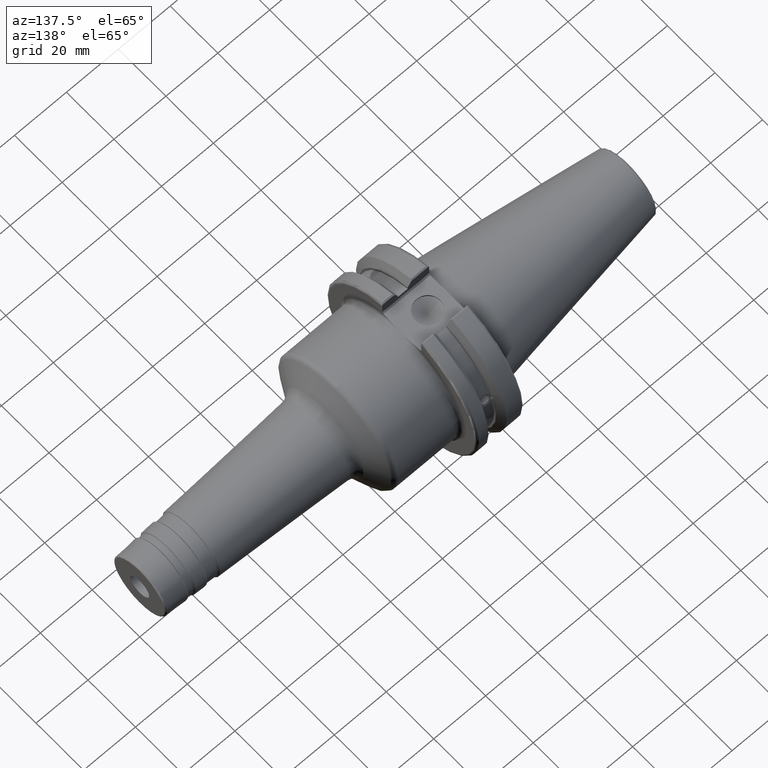
[diagram: clean part render]
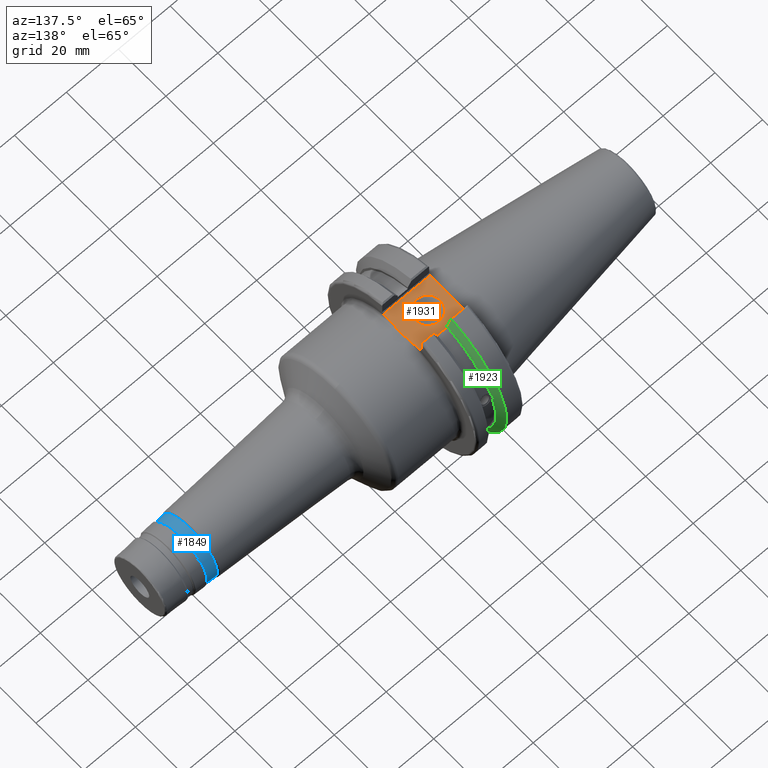
[diagram: same view with three faces highlighted in distinct colors, each labeled with its STEP entity id]
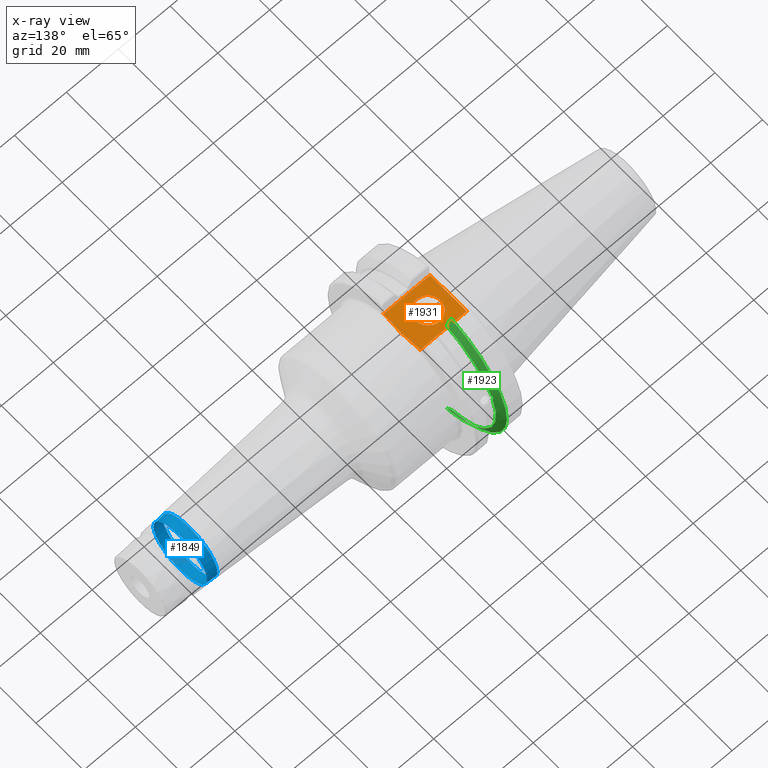
[diagram: x-ray of the same camera — body ghosted, the three highlighted faces saturated]
A machine part, auxiliary view with three faces highlighted in distinct colors.
The next image is the same camera in x-ray (body ghosted, the three faces saturated) — at least one of them is partly hidden behind the body in this view.
Their STEP definitions:

[orange] entity #1931 — the highlighted planar face has unit normal (0, 0, 1).
#83=PLANE('',#2202);
#116=FACE_BOUND('',#407,.T.);
#123=B_SPLINE_CURVE_WITH_KNOTS('',3,(#3075,#3076,#3077,#3078,#3079,#3080,
#3081,#3082,#3083,#3084),.UNSPECIFIED.,.F.,.F.,(4,2,2,2,4),(1.28229186042809,
1.47392183654147,1.862003561099,2.25008528565653,2.44171526176991),
 .UNSPECIFIED.);
#286=FACE_OUTER_BOUND('',#406,.T.);
#406=EDGE_LOOP('',(#1785,#1786,#1787,#1788,#1789,#1790));
#407=EDGE_LOOP('',(#1791));
#431=LINE('',#3111,#529);
#438=LINE('',#3128,#536);
#472=LINE('',#3504,#570);
#497=LINE('',#3725,#595);
#499=LINE('',#3728,#597);
#529=VECTOR('',#2425,10.);
#536=VECTOR('',#2438,10.);
#570=VECTOR('',#2642,10.);
#595=VECTOR('',#2725,10.);
#597=VECTOR('',#2729,10.);
#725=CIRCLE('',#2187,4.7625);
#794=VERTEX_POINT('',#3073);
#795=VERTEX_POINT('',#3074);
#798=VERTEX_POINT('',#3110);
#805=VERTEX_POINT('',#3126);
#881=VERTEX_POINT('',#3501);
#882=VERTEX_POINT('',#3503);
#924=VERTEX_POINT('',#3758);
#1015=EDGE_CURVE('',#794,#795,#123,.F.);
#1020=EDGE_CURVE('',#794,#798,#431,.T.);
#1029=EDGE_CURVE('',#805,#795,#438,.T.);
#1134=EDGE_CURVE('',#881,#882,#472,.T.);
#1193=EDGE_CURVE('',#798,#881,#497,.T.);
#1195=EDGE_CURVE('',#882,#805,#499,.T.);
#1207=EDGE_CURVE('',#924,#924,#725,.T.);
#1785=ORIENTED_EDGE('',*,*,#1193,.F.);
#1786=ORIENTED_EDGE('',*,*,#1020,.F.);
#1787=ORIENTED_EDGE('',*,*,#1015,.T.);
#1788=ORIENTED_EDGE('',*,*,#1029,.F.);
#1789=ORIENTED_EDGE('',*,*,#1195,.F.);
#1790=ORIENTED_EDGE('',*,*,#1134,.F.);
#1791=ORIENTED_EDGE('',*,*,#1207,.T.);
#1931=ADVANCED_FACE('',(#286,#116),#83,.T.);
#2187=AXIS2_PLACEMENT_3D('',#3759,#2761,#2762);
#2202=AXIS2_PLACEMENT_3D('',#3775,#2792,#2793);
#2425=DIRECTION('',(0.,-1.,0.));
#2438=DIRECTION('',(0.,-1.,0.));
#2642=DIRECTION('',(0.,1.,0.));
#2725=DIRECTION('',(-1.,1.16558847729675E-16,0.));
#2729=DIRECTION('',(1.,0.,0.));
#2761=DIRECTION('center_axis',(0.,0.,-1.));
#2762=DIRECTION('ref_axis',(1.,0.,0.));
#2792=DIRECTION('center_axis',(0.,0.,1.));
#2793=DIRECTION('ref_axis',(1.,0.,0.));
#3073=CARTESIAN_POINT('',(19.05,-6.16948133962654,25.));
#3074=CARTESIAN_POINT('',(19.05,6.16948133962654,25.));
#3075=CARTESIAN_POINT('Ctrl Pts',(19.05,6.16948133962654,25.));
#3076=CARTESIAN_POINT('Ctrl Pts',(19.05,5.53071475258195,25.));
#3077=CARTESIAN_POINT('Ctrl Pts',(19.0917093675371,4.76533047486056,25.));
#3078=CARTESIAN_POINT('Ctrl Pts',(19.2334466867335,2.83816328553263,25.));
#3079=CARTESIAN_POINT('Ctrl Pts',(19.3885621722339,1.29360574852511,25.));
#3080=CARTESIAN_POINT('Ctrl Pts',(19.3885621722339,-1.29360574852511,25.));
#3081=CARTESIAN_POINT('Ctrl Pts',(19.2334466867335,-2.83816328553263,25.));
#3082=CARTESIAN_POINT('Ctrl Pts',(19.0917093675371,-4.76533047486056,25.));
#3083=CARTESIAN_POINT('Ctrl Pts',(19.05,-5.53071475258195,25.));
#3084=CARTESIAN_POINT('Ctrl Pts',(19.05,-6.16948133962654,25.));
#3110=CARTESIAN_POINT('',(19.05,-7.69,25.));
#3111=CARTESIAN_POINT('',(19.05,0.,25.));
#3126=CARTESIAN_POINT('',(19.05,7.69,25.));
#3128=CARTESIAN_POINT('',(19.05,0.,25.));
#3501=CARTESIAN_POINT('',(0.999999999999999,-7.68999999999999,25.));
#3503=CARTESIAN_POINT('',(0.999999999999999,7.69,25.));
#3504=CARTESIAN_POINT('',(0.999999999999999,15.875,25.));
#3725=CARTESIAN_POINT('',(7.81,-7.69,25.));
#3728=CARTESIAN_POINT('',(17.335,7.69,25.));
#3758=CARTESIAN_POINT('',(4.1966,-5.83238038093927E-16,25.));
#3759=CARTESIAN_POINT('Origin',(8.9591,0.,25.));
#3775=CARTESIAN_POINT('Origin',(14.62,0.,25.));

[blue] entity #1849 — the highlighted conical surface has half-angle 3 deg.
#204=FACE_OUTER_BOUND('',#314,.T.);
#314=EDGE_LOOP('',(#1330,#1331,#1332,#1333,#1334,#1335));
#427=LINE('',#3032,#525);
#525=VECTOR('',#2363,11.4158035570934);
#652=CIRCLE('',#2022,11.3171748802925);
#656=CIRCLE('',#2026,11.3171748802925);
#657=CIRCLE('',#2028,11.5144322338942);
#658=CIRCLE('',#2029,11.5144322338942);
#778=VERTEX_POINT('',#3021);
#779=VERTEX_POINT('',#3022);
#782=VERTEX_POINT('',#3031);
#783=VERTEX_POINT('',#3033);
#989=EDGE_CURVE('',#778,#779,#652,.T.);
#993=EDGE_CURVE('',#779,#778,#656,.T.);
#994=EDGE_CURVE('',#778,#782,#427,.T.);
#995=EDGE_CURVE('',#783,#782,#657,.T.);
#996=EDGE_CURVE('',#782,#783,#658,.T.);
#1330=ORIENTED_EDGE('',*,*,#989,.F.);
#1331=ORIENTED_EDGE('',*,*,#994,.T.);
#1332=ORIENTED_EDGE('',*,*,#995,.F.);
#1333=ORIENTED_EDGE('',*,*,#996,.F.);
#1334=ORIENTED_EDGE('',*,*,#994,.F.);
#1335=ORIENTED_EDGE('',*,*,#993,.F.);
#1814=CONICAL_SURFACE('',#2027,11.4158035570934,0.0523598775598297);
#1849=ADVANCED_FACE('',(#204),#1814,.T.);
#2022=AXIS2_PLACEMENT_3D('',#3023,#2351,#2352);
#2026=AXIS2_PLACEMENT_3D('',#3029,#2359,#2360);
#2027=AXIS2_PLACEMENT_3D('',#3030,#2361,#2362);
#2028=AXIS2_PLACEMENT_3D('',#3034,#2364,#2365);
#2029=AXIS2_PLACEMENT_3D('',#3035,#2366,#2367);
#2351=DIRECTION('center_axis',(1.,0.,0.));
#2352=DIRECTION('ref_axis',(0.,-1.,3.06161699786838E-17));
#2359=DIRECTION('center_axis',(1.,0.,0.));
#2360=DIRECTION('ref_axis',(0.,-1.,3.06161699786838E-17));
#2361=DIRECTION('center_axis',(-1.,0.,0.));
#2362=DIRECTION('ref_axis',(0.,1.,0.));
#2363=DIRECTION('',(-0.998629534754574,-0.0523359562429436,-6.40930612932369E-18));
#2364=DIRECTION('center_axis',(-1.,0.,0.));
#2365=DIRECTION('ref_axis',(0.,-1.,3.06161699786838E-17));
#2366=DIRECTION('center_axis',(-1.,0.,0.));
#2367=DIRECTION('ref_axis',(0.,-1.,3.06161699786838E-17));
#3021=CARTESIAN_POINT('',(104.394281450576,-11.3171748802925,-1.38595419925411E-15));
#3022=CARTESIAN_POINT('',(104.394281450576,-1.38595419925411E-15,11.3171748802925));
#3023=CARTESIAN_POINT('Origin',(104.394281450576,0.,-1.73244274906763E-15));
#3029=CARTESIAN_POINT('Origin',(104.394281450576,0.,-1.73244274906763E-15));
#3030=CARTESIAN_POINT('Origin',(102.512334187209,0.,0.));
#3031=CARTESIAN_POINT('',(100.630386923842,-11.5144322338942,-1.41011125792377E-15));
#3032=CARTESIAN_POINT('',(102.512334187209,-11.4158035570934,-1.39803272858894E-15));
#3033=CARTESIAN_POINT('',(100.630386923842,-1.41011125792377E-15,11.5144322338942));
#3034=CARTESIAN_POINT('Origin',(100.630386923842,0.,-1.76263907240471E-15));
#3035=CARTESIAN_POINT('Origin',(100.630386923842,0.,-1.76263907240471E-15));

[green] entity #1923 — the highlighted conical surface has half-angle 60 deg.
#23=(
BOUNDED_CURVE()
B_SPLINE_CURVE(2,(#3563,#3564,#3565),.UNSPECIFIED.,.F.,.F.)
B_SPLINE_CURVE_WITH_KNOTS((3,3),(0.,0.276549142797088),.UNSPECIFIED.)
CURVE()
GEOMETRIC_REPRESENTATION_ITEM()
RATIONAL_B_SPLINE_CURVE((1.,1.00095203903867,1.00031614444995))
REPRESENTATION_ITEM('')
);
#28=(
BOUNDED_CURVE()
B_SPLINE_CURVE(2,(#3705,#3706,#3707),.UNSPECIFIED.,.F.,.F.)
B_SPLINE_CURVE_WITH_KNOTS((3,3),(0.,0.0639048713676096),.UNSPECIFIED.)
CURVE()
GEOMETRIC_REPRESENTATION_ITEM()
RATIONAL_B_SPLINE_CURVE((1.,1.00028444218277,1.00047644010564))
REPRESENTATION_ITEM('')
);
#29=(
BOUNDED_CURVE()
B_SPLINE_CURVE(2,(#3732,#3733,#3734),.UNSPECIFIED.,.F.,.F.)
B_SPLINE_CURVE_WITH_KNOTS((3,3),(0.0550586467393311,0.331607789535851),
 .UNSPECIFIED.)
CURVE()
GEOMETRIC_REPRESENTATION_ITEM()
RATIONAL_B_SPLINE_CURVE((1.00031614445049,1.00095203904028,1.))
REPRESENTATION_ITEM('')
);
#30=(
BOUNDED_CURVE()
B_SPLINE_CURVE(2,(#3749,#3750,#3751),.UNSPECIFIED.,.F.,.F.)
B_SPLINE_CURVE_WITH_KNOTS((3,3),(0.329353533631214,0.393258405001024),
 .UNSPECIFIED.)
CURVE()
GEOMETRIC_REPRESENTATION_ITEM()
RATIONAL_B_SPLINE_CURVE((1.00047644010576,1.00028444218285,1.))
REPRESENTATION_ITEM('')
);
#135=B_SPLINE_CURVE_WITH_KNOTS('',3,(#3392,#3393,#3394,#3395,#3396,#3397,
#3398,#3399,#3400,#3401,#3402,#3403,#3404,#3405),.UNSPECIFIED.,.F.,.F.,
(4,2,2,2,2,2,4),(0.451995700189025,0.464547828547662,0.504528771685167,
0.544509714822672,0.584490657960178,0.624471601097683,0.637023729456319),
 .UNSPECIFIED.);
#278=FACE_OUTER_BOUND('',#398,.T.);
#398=EDGE_LOOP('',(#1745,#1746,#1747,#1748,#1749,#1750,#1751,#1752));
#703=CIRCLE('',#2129,28.9593772964944);
#723=CIRCLE('',#2179,31.75);
#726=CIRCLE('',#2189,28.9593772964944);
#856=VERTEX_POINT('',#3389);
#857=VERTEX_POINT('',#3391);
#869=VERTEX_POINT('',#3466);
#892=VERTEX_POINT('',#3560);
#893=VERTEX_POINT('',#3562);
#914=VERTEX_POINT('',#3703);
#920=VERTEX_POINT('',#3731);
#921=VERTEX_POINT('',#3741);
#1101=EDGE_CURVE('',#857,#856,#135,.T.);
#1117=EDGE_CURVE('',#857,#869,#703,.T.);
#1150=EDGE_CURVE('',#893,#892,#23,.T.);
#1185=EDGE_CURVE('',#914,#892,#28,.T.);
#1197=EDGE_CURVE('',#920,#869,#29,.T.);
#1202=EDGE_CURVE('',#914,#921,#723,.T.);
#1204=EDGE_CURVE('',#920,#921,#30,.T.);
#1209=EDGE_CURVE('',#893,#856,#726,.T.);
#1745=ORIENTED_EDGE('',*,*,#1101,.T.);
#1746=ORIENTED_EDGE('',*,*,#1209,.F.);
#1747=ORIENTED_EDGE('',*,*,#1150,.T.);
#1748=ORIENTED_EDGE('',*,*,#1185,.F.);
#1749=ORIENTED_EDGE('',*,*,#1202,.T.);
#1750=ORIENTED_EDGE('',*,*,#1204,.F.);
#1751=ORIENTED_EDGE('',*,*,#1197,.T.);
#1752=ORIENTED_EDGE('',*,*,#1117,.F.);
#1825=CONICAL_SURFACE('',#2188,30.3546886482472,1.0471975511966);
#1923=ADVANCED_FACE('',(#278),#1825,.T.);
#2129=AXIS2_PLACEMENT_3D('',#3467,#2602,#2603);
#2179=AXIS2_PLACEMENT_3D('',#3743,#2743,#2744);
#2188=AXIS2_PLACEMENT_3D('',#3761,#2764,#2765);
#2189=AXIS2_PLACEMENT_3D('',#3762,#2766,#2767);
#2602=DIRECTION('center_axis',(1.,0.,0.));
#2603=DIRECTION('ref_axis',(0.,0.,-1.));
#2743=DIRECTION('center_axis',(1.,0.,0.));
#2744=DIRECTION('ref_axis',(0.,0.,-1.));
#2764=DIRECTION('center_axis',(-1.,0.,0.));
#2765=DIRECTION('ref_axis',(0.,1.,0.));
#2766=DIRECTION('center_axis',(1.,0.,0.));
#2767=DIRECTION('ref_axis',(0.,0.,-1.));
#3389=CARTESIAN_POINT('',(9.2191,27.4956274489925,9.09043478536247));
#3391=CARTESIAN_POINT('',(9.2191,26.9060914640648,10.7101715919071));
#3392=CARTESIAN_POINT('Ctrl Pts',(9.2191,26.9060914640648,10.7101715919071));
#3393=CARTESIAN_POINT('Ctrl Pts',(9.20497959280038,26.9406927482839,10.6893765730703));
#3394=CARTESIAN_POINT('Ctrl Pts',(9.19150701821434,26.9744191989197,10.6676007180673));
#3395=CARTESIAN_POINT('Ctrl Pts',(9.13811855884095,27.1113422433188,10.5723885976054));
#3396=CARTESIAN_POINT('Ctrl Pts',(9.09998029158246,27.2180531796526,10.4801333026531));
#3397=CARTESIAN_POINT('Ctrl Pts',(9.04778935539424,27.3968610665578,10.2639559818059));
#3398=CARTESIAN_POINT('Ctrl Pts',(9.0341,27.4684373304961,10.139516340139));
#3399=CARTESIAN_POINT('Ctrl Pts',(9.0341,27.559599249844,9.8890510252165));
#3400=CARTESIAN_POINT('Ctrl Pts',(9.04778935539424,27.5847569104121,9.74771639360671));
#3401=CARTESIAN_POINT('Ctrl Pts',(9.09998029158246,27.5867382255984,9.46717946402648));
#3402=CARTESIAN_POINT('Ctrl Pts',(9.13811855884095,27.5642934663232,9.32791534028656));
#3403=CARTESIAN_POINT('Ctrl Pts',(9.19150701821433,27.5206055003512,9.16696618806878));
#3404=CARTESIAN_POINT('Ctrl Pts',(9.20497959280038,27.5087667900418,9.12860597076219));
#3405=CARTESIAN_POINT('Ctrl Pts',(9.21909999999999,27.4956274489925,9.09043478536247));
#3466=CARTESIAN_POINT('',(9.2191,8.19,27.7771386827498));
#3467=CARTESIAN_POINT('Origin',(9.2191,0.,0.));
#3560=CARTESIAN_POINT('',(7.88668530351255,8.19,-30.1755016258903));
#3562=CARTESIAN_POINT('',(9.2191,8.19,-27.7771386827498));
#3563=CARTESIAN_POINT('Ctrl Pts',(9.2191,8.19,-27.7771386827498));
#3564=CARTESIAN_POINT('Ctrl Pts',(8.58046356153227,8.19,-28.9303689539555));
#3565=CARTESIAN_POINT('Ctrl Pts',(7.88668530351255,8.19,-30.1755016258903));
#3703=CARTESIAN_POINT('',(7.60793323092436,8.67204822802685,-30.5427254764662));
#3705=CARTESIAN_POINT('Ctrl Pts',(7.60793323092436,8.67204822802685,-30.5427254764662));
#3706=CARTESIAN_POINT('Ctrl Pts',(7.74899148121625,8.42917748262648,-30.357706789263));
#3707=CARTESIAN_POINT('Ctrl Pts',(7.88668530351255,8.19,-30.1755016258903));
#3731=CARTESIAN_POINT('',(7.88668530351256,8.19,30.1755016258903));
#3732=CARTESIAN_POINT('Ctrl Pts',(7.88668530351256,8.19,30.1755016258903));
#3733=CARTESIAN_POINT('Ctrl Pts',(8.5804635615239,8.19,28.9303689539705));
#3734=CARTESIAN_POINT('Ctrl Pts',(9.2191,8.19,27.7771386827498));
#3741=CARTESIAN_POINT('',(7.60793323092436,8.67204822802685,30.5427254764662));
#3743=CARTESIAN_POINT('Origin',(7.60793323092436,0.,0.));
#3749=CARTESIAN_POINT('Ctrl Pts',(7.88668530351256,8.19,30.1755016258903));
#3750=CARTESIAN_POINT('Ctrl Pts',(7.7489914812116,8.42917748263465,30.3577067892692));
#3751=CARTESIAN_POINT('Ctrl Pts',(7.60793323092436,8.67204822802685,30.5427254764662));
#3761=CARTESIAN_POINT('Origin',(8.41351661546217,0.,0.));
#3762=CARTESIAN_POINT('Origin',(9.2191,0.,0.));